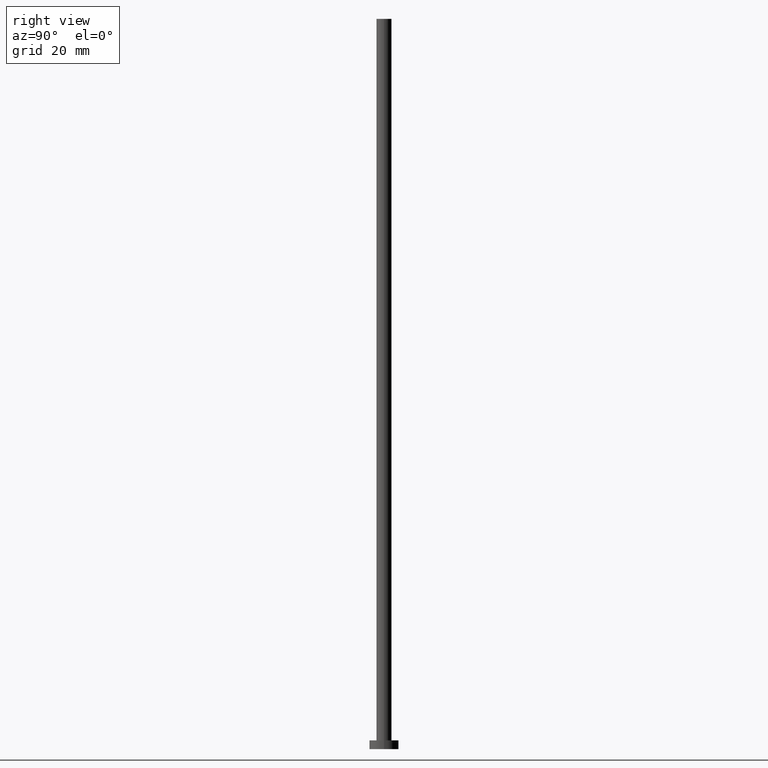
[diagram: clean part render]
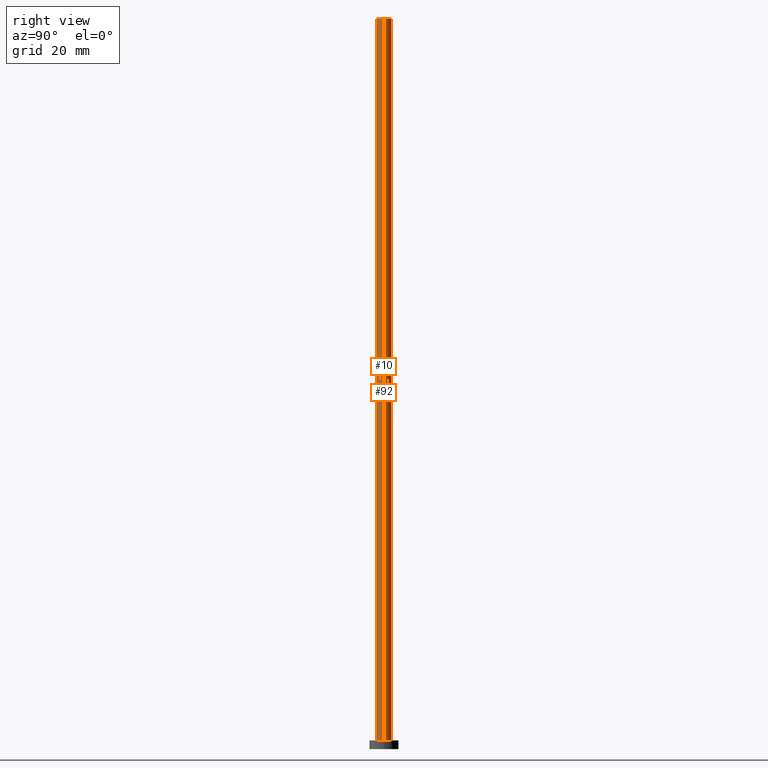
[diagram: same view with one multi-face feature highlighted, each face labeled with its STEP entity id]
A machine part, right view. The highlighted faces form ONE feature: a constant-radius fillet chain: 2 tangent blend faces with common blend radius 2.6 mm. The faces share edges in the B-rep.
Their STEP definitions:
[1] entity #92 (Cylinder):
#5 = CARTESIAN_POINT ( 'NONE',  ( 2.600000000000000089, 3.184081677783118191E-16, 3.000000000000000000 ) ) ;
#6 = DIRECTION ( 'NONE',  ( -0.000000000000000000, -0.000000000000000000, -1.000000000000000000 ) ) ;
#7 = CARTESIAN_POINT ( 'NONE',  ( 0.000000000000000000, 0.000000000000000000, 250.0000000000000000 ) ) ;
#20 = ORIENTED_EDGE ( 'NONE', *, *, #167, .T. ) ;
#21 = AXIS2_PLACEMENT_3D ( 'NONE', #7, #253, #83 ) ;
#35 = ORIENTED_EDGE ( 'NONE', *, *, #126, .F. ) ;
#37 = CIRCLE ( 'NONE', #152, 2.600000000000000089 ) ;
#38 = CARTESIAN_POINT ( 'NONE',  ( 2.600000000000000089, 3.184081677783118191E-16, 250.0000000000000000 ) ) ;
#41 = DIRECTION ( 'NONE',  ( 0.000000000000000000, 0.000000000000000000, 1.000000000000000000 ) ) ;
#43 = DIRECTION ( 'NONE',  ( 1.000000000000000000, 0.000000000000000000, 0.000000000000000000 ) ) ;
#55 = CIRCLE ( 'NONE', #194, 2.600000000000000089 ) ;
#77 = CARTESIAN_POINT ( 'NONE',  ( -2.600000000000000089, 0.000000000000000000, 250.0000000000000000 ) ) ;
#83 = DIRECTION ( 'NONE',  ( -1.000000000000000000, 0.000000000000000000, 0.000000000000000000 ) ) ;
#92 = ADVANCED_FACE ( 'NONE', ( #100 ), #183, .T. ) ;
#93 = EDGE_LOOP ( 'NONE', ( #35, #226, #20, #197 ) ) ;
#99 = CARTESIAN_POINT ( 'NONE',  ( -2.600000000000000089, 0.000000000000000000, 250.0000000000000000 ) ) ;
#100 = FACE_OUTER_BOUND ( 'NONE', #93, .T. ) ;
#102 = DIRECTION ( 'NONE',  ( 0.000000000000000000, 0.000000000000000000, 1.000000000000000000 ) ) ;
#126 = EDGE_CURVE ( 'NONE', #222, #136, #55, .T. ) ;
#136 = VERTEX_POINT ( 'NONE', #99 ) ;
#137 = VECTOR ( 'NONE', #6, 1000.000000000000000 ) ;
#140 = LINE ( 'NONE', #77, #173 ) ;
#152 = AXIS2_PLACEMENT_3D ( 'NONE', #227, #41, #43 ) ;
#154 = VERTEX_POINT ( 'NONE', #179 ) ;
#161 = LINE ( 'NONE', #38, #137 ) ;
#167 = EDGE_CURVE ( 'NONE', #178, #154, #37, .T. ) ;
#173 = VECTOR ( 'NONE', #244, 1000.000000000000000 ) ;
#177 = EDGE_CURVE ( 'NONE', #222, #178, #161, .T. ) ;
#178 = VERTEX_POINT ( 'NONE', #5 ) ;
#179 = CARTESIAN_POINT ( 'NONE',  ( -2.600000000000000089, 0.000000000000000000, 3.000000000000000000 ) ) ;
#183 = CYLINDRICAL_SURFACE ( 'NONE', #21, 2.600000000000000089 ) ;
#184 = DIRECTION ( 'NONE',  ( 1.000000000000000000, 0.000000000000000000, 0.000000000000000000 ) ) ;
#194 = AXIS2_PLACEMENT_3D ( 'NONE', #231, #102, #184 ) ;
#197 = ORIENTED_EDGE ( 'NONE', *, *, #208, .F. ) ;
#198 = CARTESIAN_POINT ( 'NONE',  ( 2.600000000000000089, 3.184081677783118191E-16, 250.0000000000000000 ) ) ;
#208 = EDGE_CURVE ( 'NONE', #136, #154, #140, .T. ) ;
#222 = VERTEX_POINT ( 'NONE', #198 ) ;
#226 = ORIENTED_EDGE ( 'NONE', *, *, #177, .T. ) ;
#227 = CARTESIAN_POINT ( 'NONE',  ( 0.000000000000000000, 0.000000000000000000, 3.000000000000000000 ) ) ;
#231 = CARTESIAN_POINT ( 'NONE',  ( 0.000000000000000000, 0.000000000000000000, 250.0000000000000000 ) ) ;
#244 = DIRECTION ( 'NONE',  ( -0.000000000000000000, -0.000000000000000000, -1.000000000000000000 ) ) ;
#253 = DIRECTION ( 'NONE',  ( -0.000000000000000000, -0.000000000000000000, -1.000000000000000000 ) ) ;
[2] entity #10 (Cylinder):
#5 = CARTESIAN_POINT ( 'NONE',  ( 2.600000000000000089, 3.184081677783118191E-16, 3.000000000000000000 ) ) ;
#6 = DIRECTION ( 'NONE',  ( -0.000000000000000000, -0.000000000000000000, -1.000000000000000000 ) ) ;
#10 = ADVANCED_FACE ( 'NONE', ( #19 ), #218, .T. ) ;
#16 = CARTESIAN_POINT ( 'NONE',  ( 0.000000000000000000, 0.000000000000000000, 250.0000000000000000 ) ) ;
#19 = FACE_OUTER_BOUND ( 'NONE', #116, .T. ) ;
#31 = EDGE_CURVE ( 'NONE', #136, #222, #61, .T. ) ;
#34 = AXIS2_PLACEMENT_3D ( 'NONE', #141, #211, #228 ) ;
#38 = CARTESIAN_POINT ( 'NONE',  ( 2.600000000000000089, 3.184081677783118191E-16, 250.0000000000000000 ) ) ;
#45 = DIRECTION ( 'NONE',  ( 0.000000000000000000, 0.000000000000000000, 1.000000000000000000 ) ) ;
#50 = AXIS2_PLACEMENT_3D ( 'NONE', #84, #45, #248 ) ;
#57 = EDGE_CURVE ( 'NONE', #154, #178, #109, .T. ) ;
#59 = ORIENTED_EDGE ( 'NONE', *, *, #57, .T. ) ;
#61 = CIRCLE ( 'NONE', #34, 2.600000000000000089 ) ;
#63 = DIRECTION ( 'NONE',  ( -1.000000000000000000, 0.000000000000000000, 0.000000000000000000 ) ) ;
#77 = CARTESIAN_POINT ( 'NONE',  ( -2.600000000000000089, 0.000000000000000000, 250.0000000000000000 ) ) ;
#84 = CARTESIAN_POINT ( 'NONE',  ( 0.000000000000000000, 0.000000000000000000, 3.000000000000000000 ) ) ;
#99 = CARTESIAN_POINT ( 'NONE',  ( -2.600000000000000089, 0.000000000000000000, 250.0000000000000000 ) ) ;
#109 = CIRCLE ( 'NONE', #50, 2.600000000000000089 ) ;
#116 = EDGE_LOOP ( 'NONE', ( #241, #219, #135, #59 ) ) ;
#135 = ORIENTED_EDGE ( 'NONE', *, *, #208, .T. ) ;
#136 = VERTEX_POINT ( 'NONE', #99 ) ;
#137 = VECTOR ( 'NONE', #6, 1000.000000000000000 ) ;
#140 = LINE ( 'NONE', #77, #173 ) ;
#141 = CARTESIAN_POINT ( 'NONE',  ( 0.000000000000000000, 0.000000000000000000, 250.0000000000000000 ) ) ;
#154 = VERTEX_POINT ( 'NONE', #179 ) ;
#161 = LINE ( 'NONE', #38, #137 ) ;
#171 = AXIS2_PLACEMENT_3D ( 'NONE', #16, #207, #63 ) ;
#173 = VECTOR ( 'NONE', #244, 1000.000000000000000 ) ;
#177 = EDGE_CURVE ( 'NONE', #222, #178, #161, .T. ) ;
#178 = VERTEX_POINT ( 'NONE', #5 ) ;
#179 = CARTESIAN_POINT ( 'NONE',  ( -2.600000000000000089, 0.000000000000000000, 3.000000000000000000 ) ) ;
#198 = CARTESIAN_POINT ( 'NONE',  ( 2.600000000000000089, 3.184081677783118191E-16, 250.0000000000000000 ) ) ;
#207 = DIRECTION ( 'NONE',  ( -0.000000000000000000, -0.000000000000000000, -1.000000000000000000 ) ) ;
#208 = EDGE_CURVE ( 'NONE', #136, #154, #140, .T. ) ;
#211 = DIRECTION ( 'NONE',  ( 0.000000000000000000, 0.000000000000000000, 1.000000000000000000 ) ) ;
#218 = CYLINDRICAL_SURFACE ( 'NONE', #171, 2.600000000000000089 ) ;
#219 = ORIENTED_EDGE ( 'NONE', *, *, #31, .F. ) ;
#222 = VERTEX_POINT ( 'NONE', #198 ) ;
#228 = DIRECTION ( 'NONE',  ( 1.000000000000000000, 0.000000000000000000, 0.000000000000000000 ) ) ;
#241 = ORIENTED_EDGE ( 'NONE', *, *, #177, .F. ) ;
#244 = DIRECTION ( 'NONE',  ( -0.000000000000000000, -0.000000000000000000, -1.000000000000000000 ) ) ;
#248 = DIRECTION ( 'NONE',  ( 1.000000000000000000, 0.000000000000000000, 0.000000000000000000 ) ) ;